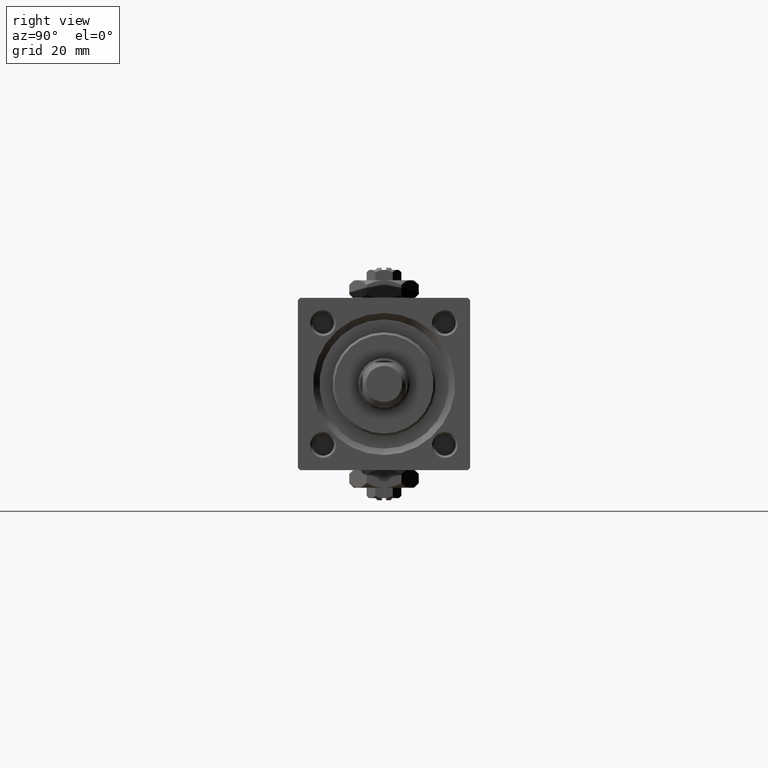
[diagram: clean part render]
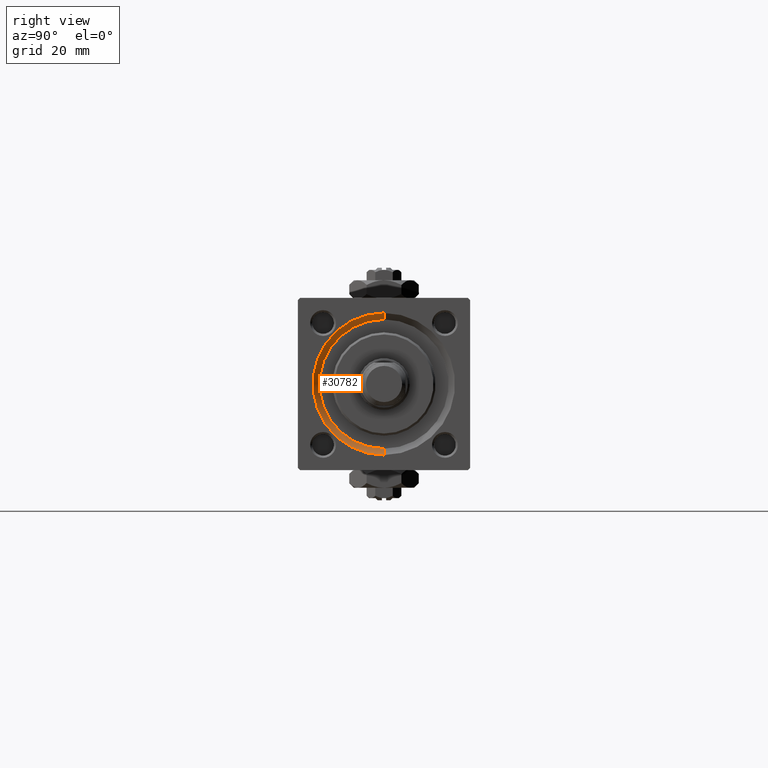
[diagram: same view with one face highlighted and labeled with its STEP entity id]
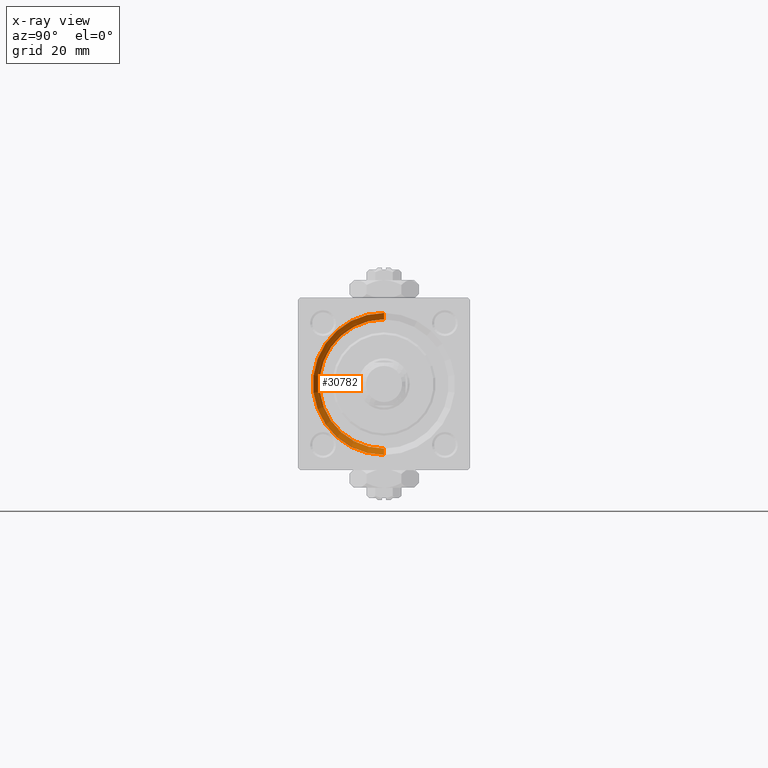
[diagram: x-ray of the same camera — body ghosted, the highlighted face saturated]
A machine part, right view. The second image highlights one B-rep face of the part: STEP entity #30782.
The next image is the same camera in x-ray: the body ghosted, the highlighted face saturated — about 0% of this face is hidden behind the body in this view.
In plain terms, the highlighted conical surface has half-angle 45 deg.
Its self-contained STEP definition (entity closure, byte-faithful):
#92 = CARTESIAN_POINT ( 'NONE',  ( 119.0000000000000142, 0.000000000000000000, -16.50000000000001421 ) ) ;
#2894 = ORIENTED_EDGE ( 'NONE', *, *, #47259, .F. ) ;
#3493 = DIRECTION ( 'NONE',  ( 0.000000000000000000, 0.000000000000000000, 1.000000000000000000 ) ) ;
#4284 = ORIENTED_EDGE ( 'NONE', *, *, #39881, .F. ) ;
#6546 = FACE_OUTER_BOUND ( 'NONE', #24005, .T. ) ;
#6812 = DIRECTION ( 'NONE',  ( 1.000000000000000000, 0.000000000000000000, 0.000000000000000000 ) ) ;
#7331 = DIRECTION ( 'NONE',  ( 0.000000000000000000, 0.000000000000000000, -1.000000000000000000 ) ) ;
#7344 = AXIS2_PLACEMENT_3D ( 'NONE', #14017, #21737, #29736 ) ;
#7372 = CARTESIAN_POINT ( 'NONE',  ( 117.5000000000000000, 0.000000000000000000, -15.00000000000000000 ) ) ;
#7693 = EDGE_CURVE ( 'NONE', #18976, #25850, #16678, .T. ) ;
#7849 = ORIENTED_EDGE ( 'NONE', *, *, #45638, .T. ) ;
#9528 = LINE ( 'NONE', #13509, #48227 ) ;
#13509 = CARTESIAN_POINT ( 'NONE',  ( 117.5000000000000000, 1.836970198721029589E-15, 15.00000000000000000 ) ) ;
#14017 = CARTESIAN_POINT ( 'NONE',  ( 117.5000000000000000, 0.000000000000000000, 0.000000000000000000 ) ) ;
#14975 = VECTOR ( 'NONE', #48076, 1000.000000000000114 ) ;
#16678 = CIRCLE ( 'NONE', #7344, 15.00000000000000000 ) ;
#18976 = VERTEX_POINT ( 'NONE', #38716 ) ;
#20748 = DIRECTION ( 'NONE',  ( -1.000000000000000000, -0.000000000000000000, -0.000000000000000000 ) ) ;
#21737 = DIRECTION ( 'NONE',  ( 1.000000000000000000, 0.000000000000000000, 0.000000000000000000 ) ) ;
#24005 = EDGE_LOOP ( 'NONE', ( #27855, #7849, #4284, #2894 ) ) ;
#25778 = AXIS2_PLACEMENT_3D ( 'NONE', #26748, #6812, #7331 ) ;
#25850 = VERTEX_POINT ( 'NONE', #40274 ) ;
#26748 = CARTESIAN_POINT ( 'NONE',  ( 117.5000000000000000, 0.000000000000000000, 0.000000000000000000 ) ) ;
#27855 = ORIENTED_EDGE ( 'NONE', *, *, #7693, .F. ) ;
#27940 = CARTESIAN_POINT ( 'NONE',  ( 119.0000000000000142, 0.000000000000000000, 0.000000000000000000 ) ) ;
#29732 = DIRECTION ( 'NONE',  ( 0.7071067811865474617, 8.659560562354932858E-17, 0.7071067811865474617 ) ) ;
#29736 = DIRECTION ( 'NONE',  ( 0.000000000000000000, 0.000000000000000000, 1.000000000000000000 ) ) ;
#30159 = AXIS2_PLACEMENT_3D ( 'NONE', #27940, #20748, #3493 ) ;
#30782 = ADVANCED_FACE ( 'NONE', ( #6546 ), #46182, .F. ) ;
#34608 = VERTEX_POINT ( 'NONE', #52092 ) ;
#38716 = CARTESIAN_POINT ( 'NONE',  ( 117.5000000000000000, 1.836970198721029589E-15, 15.00000000000000000 ) ) ;
#39881 = EDGE_CURVE ( 'NONE', #51149, #34608, #40402, .T. ) ;
#40274 = CARTESIAN_POINT ( 'NONE',  ( 117.5000000000000000, 0.000000000000000000, -15.00000000000000000 ) ) ;
#40402 = CIRCLE ( 'NONE', #30159, 16.50000000000001421 ) ;
#43821 = LINE ( 'NONE', #7372, #14975 ) ;
#45638 = EDGE_CURVE ( 'NONE', #18976, #34608, #9528, .T. ) ;
#46182 = CONICAL_SURFACE ( 'NONE', #25778, 15.00000000000000000, 0.7853981633974482790 ) ;
#47259 = EDGE_CURVE ( 'NONE', #25850, #51149, #43821, .T. ) ;
#48076 = DIRECTION ( 'NONE',  ( 0.7071067811865474617, 0.000000000000000000, -0.7071067811865474617 ) ) ;
#48227 = VECTOR ( 'NONE', #29732, 1000.000000000000114 ) ;
#51149 = VERTEX_POINT ( 'NONE', #92 ) ;
#52092 = CARTESIAN_POINT ( 'NONE',  ( 119.0000000000000142, 2.020667218593134678E-15, 16.50000000000001421 ) ) ;